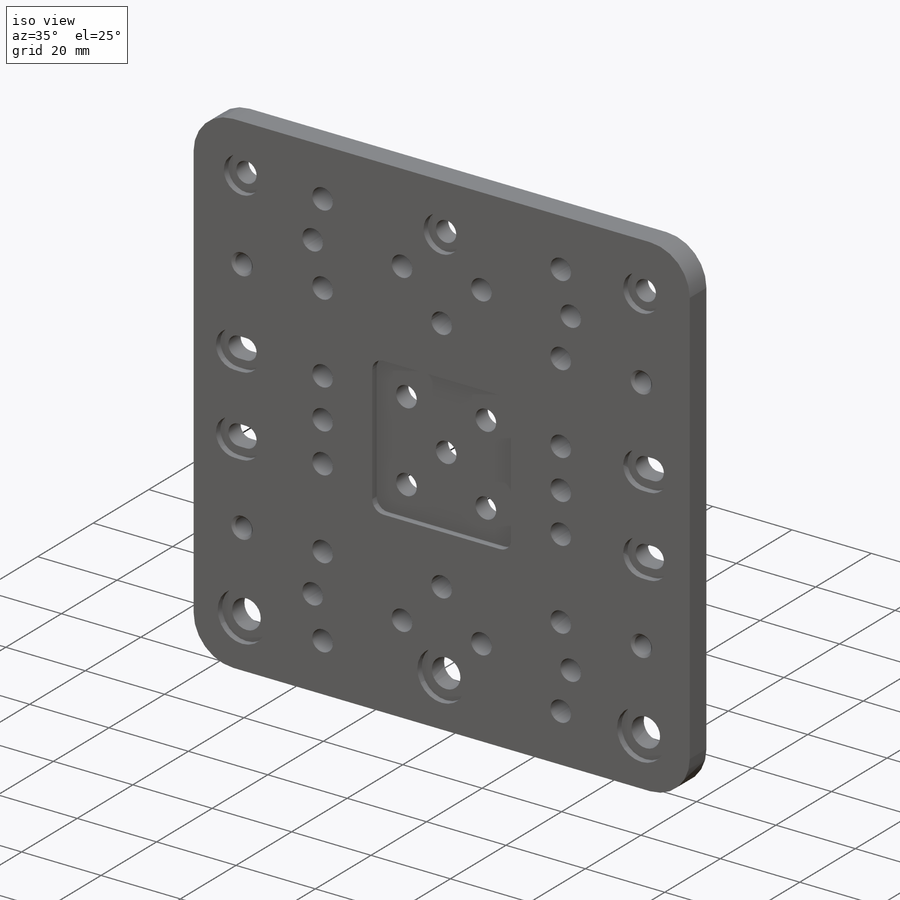
[diagram: iso view]
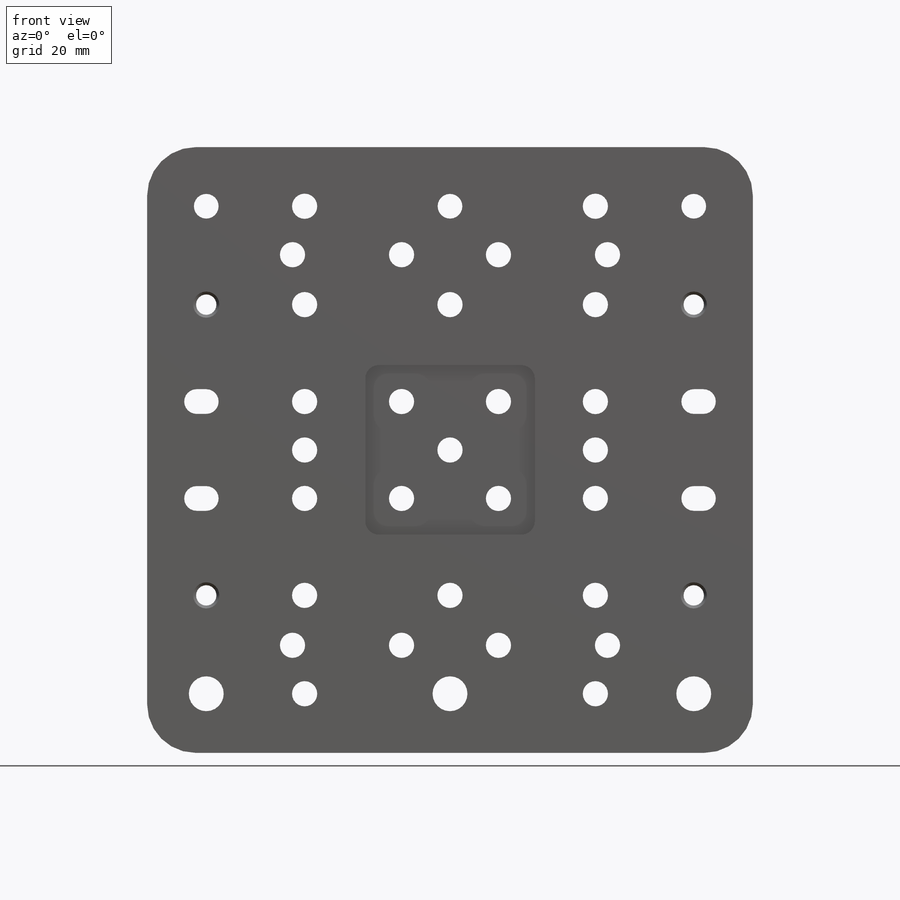
[diagram: front view]
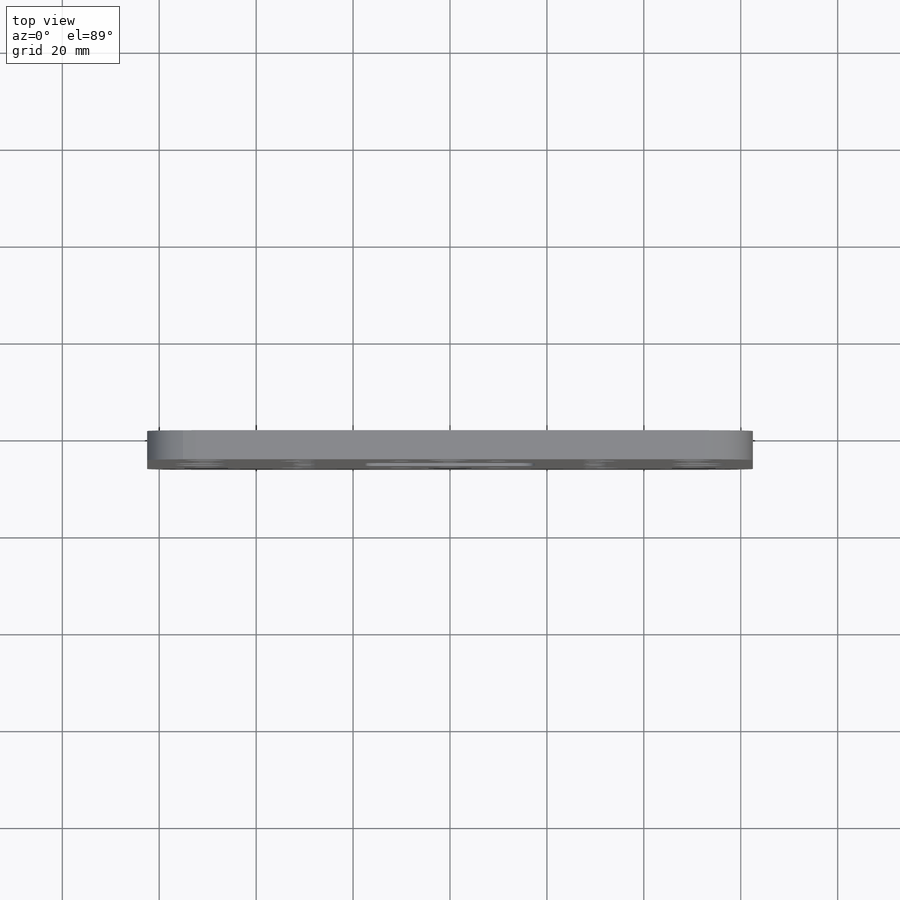
[diagram: top view]
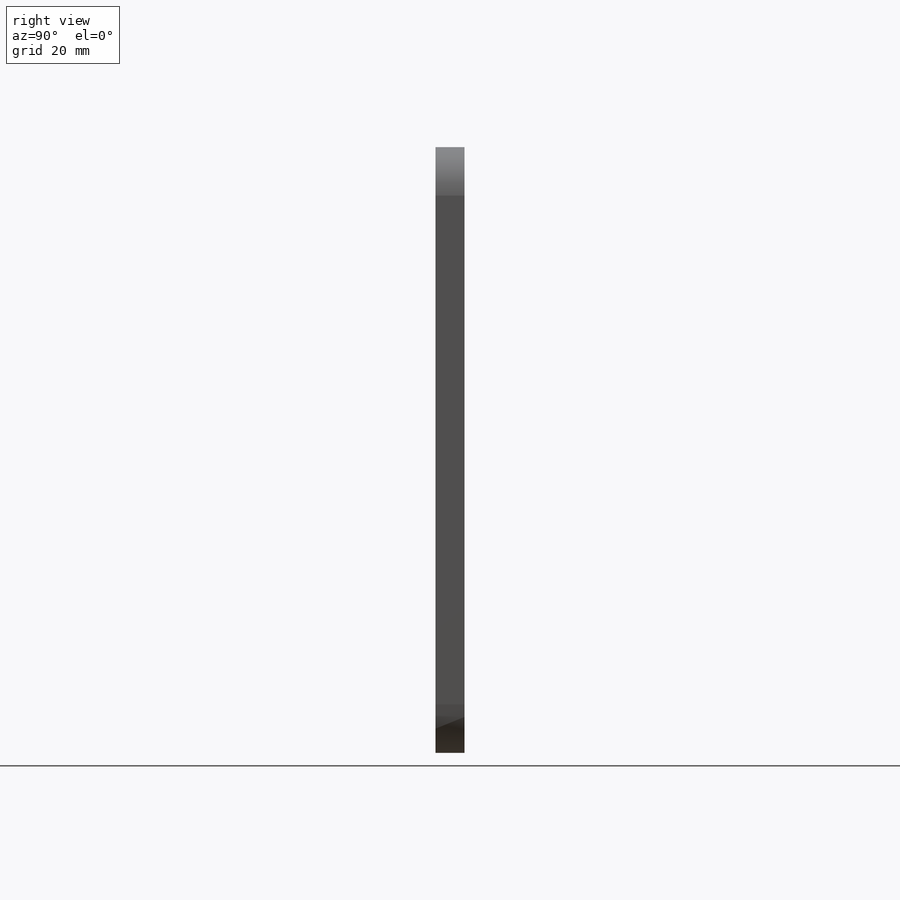
[diagram: right view]
SOLIDWORKS PART (.sldprt)
format: sldprt  version: not decoded by parser v0  size: 514,560 bytes
history: native  units: mm
features: sketch x7, thread x4, hole x2, cut_extrude x2, fillet x2, material x1, extrude x1, chamfer x1 (+13 scaffold rows collapsed)
feature tree (33):
  scaffold x13  (default folders/planes/origin — collapsed)
  material  "6061-T6 (SS)"
  sketch  "Sketch1"  dims[D1=125.0mm]
  extrude  "Boss-Extrude1"  Depth=6mm
  hole  "M5 Clearance Hole1"  Diameter=5.2mm Depth=6mm
  sketch  "Sketch3"  dims[D1=60.0mm D2=60.0mm D3=20.0mm D4=20.0mm D5=65.0mm D6=100.6mm D7=80.6mm]
  sketch  "Sketch2"  dims[hole-wizard template sketch: 59 standard entries collapsed; hole parameters kept: c18.Thru Hole Dia.=5.2mm c18.Thru Hole Depth=6.0mm]
  sketch  "Sketch4"  dims[D1=7.2mm D2=5.1mm D3=100.6mm D4=100.6mm D5=50.3mm D6=5.1mm D7=2.0mm D8=20.0mm]
  cut_extrude  "Cut-Extrude1"  [1 undecoded]
  sketch  "Sketch5"  dims[D3=12.25mm D4=9.135mm D1=35.0mm D2=9.136mm]
  cut_extrude  "Cut-Extrude2"  Depth=1.6mm
  fillet  "Fillet1"  Radius=10mm
  fillet  "Fillet2"  Radius=2.8mm
  hole  "M5x0.8 Tapped Hole1"  Diameter=4.2mm Depth=6mm
  sketch  "Sketch7"  dims[D1=60.0mm D2=100.6mm]
  sketch  "Sketch6"  dims[hole-wizard template sketch: 60 standard entries collapsed; hole parameters kept: c18.Thru Tap Drill Depth=6.0mm]
  thread  "Hole Thread1"  Diameter=5mm  [1 undecoded]
  thread  "Hole Thread2"  Diameter=5mm  [1 undecoded]
  thread  "Hole Thread3"  Diameter=5mm  [1 undecoded]
  thread  "Hole Thread4"  Diameter=5mm  [1 undecoded]
  chamfer  "Chamfer1"  Distance=0.6mm Angle=45deg
decode coverage: 18 of 19 modeling features carry decoded parameters
note: ~ marks probable driven/reference dimensions
note: 5 parameter values undecoded
note: suppression state not decoded; provenance and decode notes live in map.json
